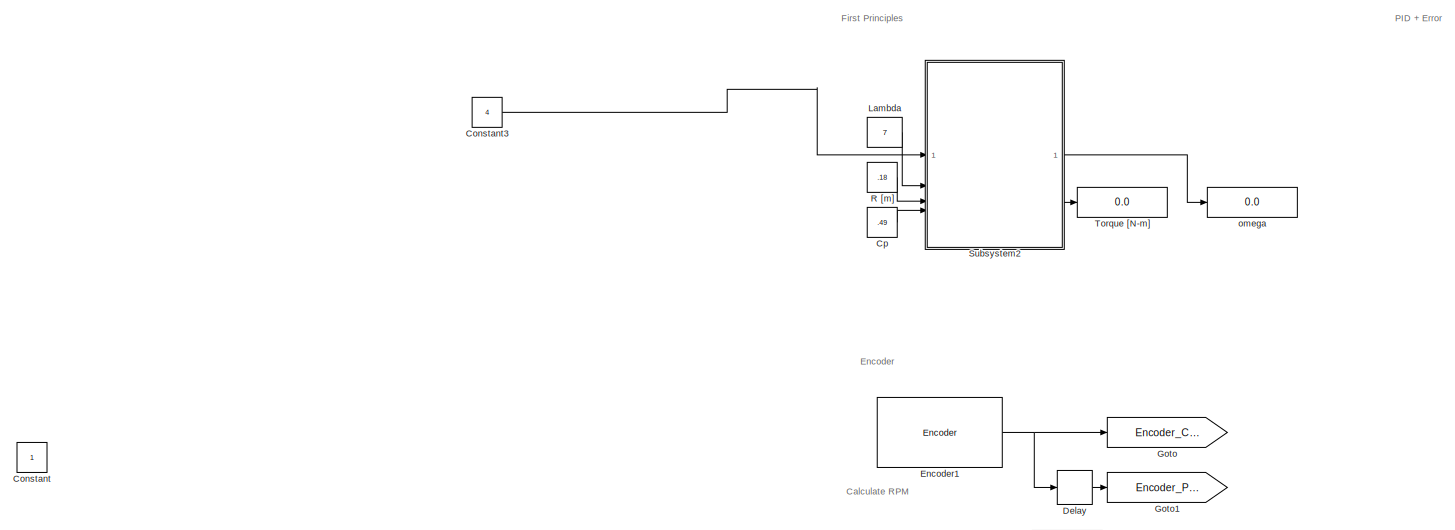
[diagram: root canvas - part 1/3, top left region]
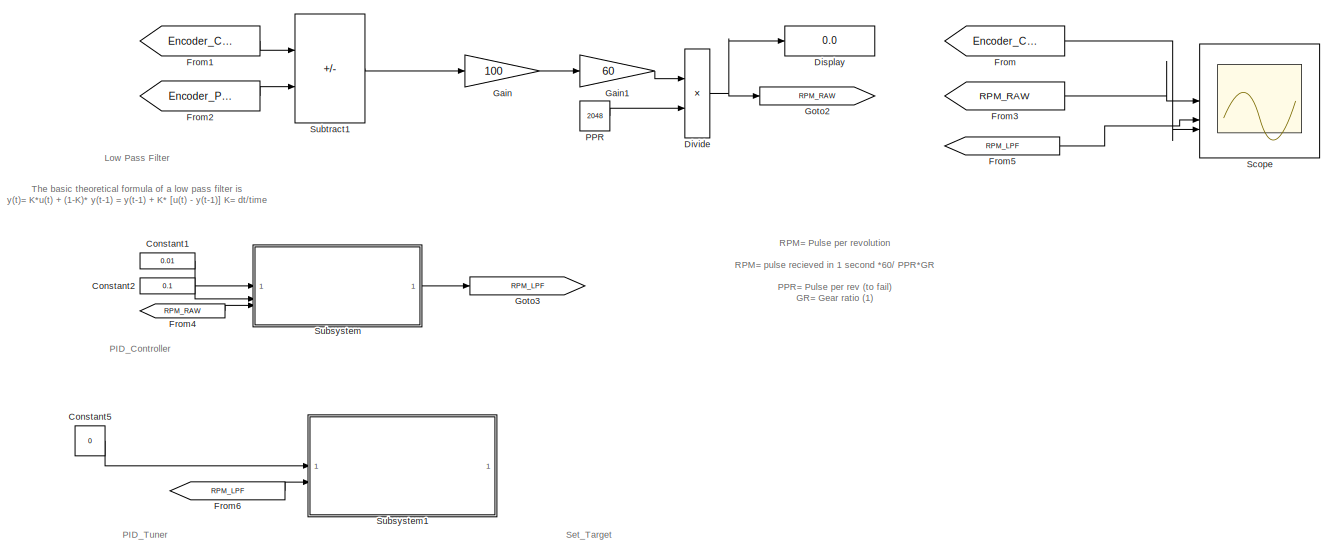
[diagram: root canvas - part 2/3, central region]
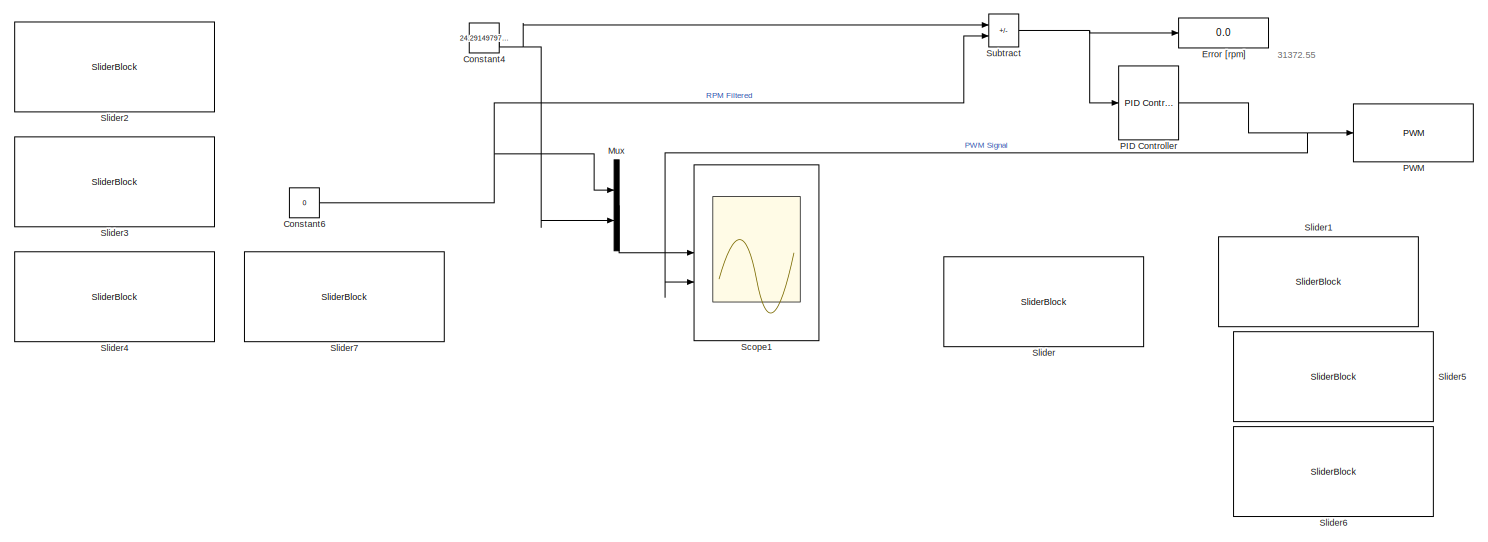
[diagram: root canvas - part 3/3, bottom right region]
MODEL slx_6d13e44df629
KIND model
CONFIG AbsTol = auto
CONFIG EnableMultiTasking = on
CONFIG FixedStep = .00011
CONFIG MaxStep = auto
CONFIG MinStep = auto
CONFIG RelTol = 1e-3
CONFIG SampleTimeConstraint = Unconstrained
CONFIG SolverName = FixedStepDiscrete
CONFIG StartTime = 0.0
CONFIG StopTime = inf
WORKSPACE source: mxarray member
WORKSPACE lambda = 10
WORKSPACE rho = 1.125
BLOCK [Constant] Constant
  IOType = siggen
BLOCK [Constant] Constant1
  Value = 0.01
BLOCK [Constant] Constant2
  Value = 0.1
BLOCK [Constant] Constant3
  Commented = on
  Value = 4
BLOCK [Constant] Constant4
  Value = 24.2914979757085
BLOCK [Constant] Constant5
  Commented = on
  Value = 0
BLOCK [Constant] Constant6
  Value = 0
BLOCK [Constant] Cp
  Commented = on
  Value = .49
BLOCK [Delay] Delay
  DelayLength = 1
  InputPortMap = u0
BLOCK [Display] Display
  Decimation = 1
BLOCK [Product] Divide
  Inputs = */
BLOCK [Reference] Encoder1  REF=arduinosensorlib/Encoder
  SourceBlock = arduinosensorlib/Encoder
  SourceType = Arduino Rotary Encoder
BLOCK [Display] Error [rpm]
  Decimation = 1
BLOCK [From] From
  GotoTag = Encoder_Current
BLOCK [From] From1
  GotoTag = Encoder_Current
BLOCK [From] From2
  GotoTag = Encoder_Previous
BLOCK [From] From3
  GotoTag = RPM_RAW
BLOCK [From] From4
  GotoTag = RPM_RAW
BLOCK [From] From5
  GotoTag = RPM_LPF
BLOCK [From] From6
  Commented = on
  GotoTag = RPM_LPF
BLOCK [Gain] Gain
  Gain = 100
BLOCK [Gain] Gain1
  Gain = 60
BLOCK [Goto] Goto
  GotoTag = Encoder_Current
BLOCK [Goto] Goto1
  GotoTag = Encoder_Previous
BLOCK [Goto] Goto2
  GotoTag = RPM_RAW
BLOCK [Goto] Goto3
  GotoTag = RPM_LPF
BLOCK [Constant] Lambda
  Commented = on
  Value = 7
BLOCK [Mux] Mux
  DisplayOption = bar
  Inputs = 2
BLOCK [Reference] PID Controller  REF=slpidlib/PID Controller
  LibrarySourceBlock = simulink/Continuous/PID Controller
  SourceBlock = slpidlib/PID Controller
  SourceType = PID 1dof
BLOCK [Constant] PPR
  Value = 2048
BLOCK [Reference] PWM  REF=arduinolib/PWM
  SourceBlock = arduinolib/PWM
  SourceType = Arduino PWM
BLOCK [Constant] R [m]
  Commented = on
  Value = .18
BLOCK [Scope] Scope
  ActiveDisplayYMaximum = 303387.53308712941
  ActiveDisplayYMinimum = -111615.35287433089
  DataLoggingVariableName = ScopeData1
  Floating = off
  GraphicalSettings = {"Style":{"BackgroundColor":[0.12941176470588237,0.12941176470588237,0.12941176470588237],"AxesColor":[0.07058823529411765,0.07058823529411765,0.07058823529411765],"LabelsColor":[0.8509803921568627,0.8509803921568627,0.8509803921568627],"PreserveColors":false,"Visible":[true,true,true],"LineStyle":["-","-","-"],"LineWidth":[1.5,1.5,1.5],"BarWidth":[0.9,0.9,0.9],"LineColor":["auto","auto","auto"],"...<+2540ch>
  LayoutDimensionsString = [1,2]
  MultipleDisplayCache = [{"MaxYLimMag":240748.4560546875,"MaxYLimReal":303387.53308712941,"MinYLimMag":0,"MinYLimReal":-111615.35287433089,"PlotAsMagnitudePhase":false,"ShowGrid":true,"ShowLegend":true,"Title":"%<SignalLabel>","YLabel":""},{"MaxYLimMag":240748.4560546875,"MaxYLimReal":303387.53308712941,"MinYLimMag":0,"MinYLimReal":-111615.35287433089,"PlotAsMagnitudePhase":false,"ShowGrid":true,"ShowLegend":true,"Title"...<+31ch>
  NumInputPorts = 3
  ScopeFrameLocation = window
  ShowLegend = on
  WasSavedAsWebScope = on
  WindowPosition = [641.000000,40.000000,1278.000000,1360.000000,]
BLOCK [Scope] Scope1
  ActiveDisplayString = 2
  ActiveDisplayYMaximum = 288.71002139995966
  ActiveDisplayYMinimum = -159.80323832172013
  Floating = off
  GraphicalSettings = {"AxesScalingProperties":{"AlignXAxis":"Center","AlignYAxis":"Center","AutoScaleXAxisLimits":false,"AxesScaling":"Manual","AxesScalingNumUpdates":10,"ExpandOnly":true,"ScaleAxesLimitsAtStop":false,"XAxisDataRange":100,"YAxisDataRange":80},"DisplayProperties":{"ColorOrder":["auto","auto","auto","auto","auto","auto","auto","auto","auto","auto","auto","auto","auto","auto","auto","auto","auto","auto",...<+2548ch>
  LayoutDimensionsString = [2,1]
  MultipleDisplayCache = [{"MaxYLimMag":533.12025445699692,"MaxYLimReal":753.05621796649029,"MinYLimMag":0,"MinYLimReal":-234.85934648326409,"PlotAsMagnitudePhase":false,"ShowGrid":true,"ShowLegend":true,"Title":"%<SignalLabel>","YLabel":""},{"MaxYLimMag":286.875,"MaxYLimReal":288.71002139995966,"MinYLimMag":0,"MinYLimReal":-159.80323832172013,"PlotAsMagnitudePhase":false,"ShowGrid":true,"ShowLegend":true,"Title":"%<Signa...<+22ch>
  NumInputPorts = 2
  ScopeFrameLocation = window
  ShowLegend = on
  WasSavedAsWebScope = on
  WindowPosition = [1282.000000,50.000000,1278.000000,1360.000000,]
BLOCK [SliderBlock] Slider
  ScaleMax = 1500
BLOCK [SliderBlock] Slider1
  ScaleMax = 0.2
BLOCK [SliderBlock] Slider2
  Commented = on
  ScaleMax = 0.05
BLOCK [SliderBlock] Slider3
  Commented = on
  ScaleMax = 5
BLOCK [SliderBlock] Slider4
  Commented = on
  ScaleMax = 0.05
BLOCK [SliderBlock] Slider5
  ScaleMax = 10
BLOCK [SliderBlock] Slider6
  ScaleMax = 10
BLOCK [SliderBlock] Slider7
  ScaleMax = 2000
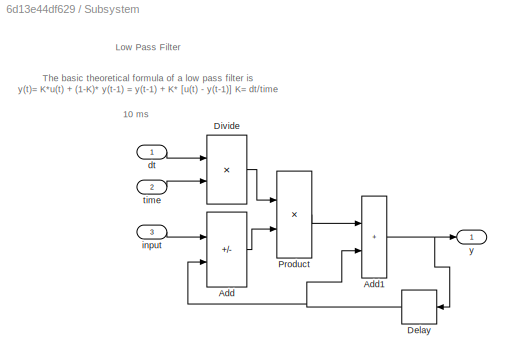
BLOCK [SubSystem] Subsystem
BLOCK [Sum] Subsystem/Add
  IconShape = rectangular
  Inputs = +-
BLOCK [Sum] Subsystem/Add1
  IconShape = rectangular
BLOCK [Delay] Subsystem/Delay
  DelayLength = 1
  InputPortMap = u0
  NameLocation = top
BLOCK [Product] Subsystem/Divide
  Inputs = */
BLOCK [Product] Subsystem/Product
BLOCK [Inport] Subsystem/dt
BLOCK [Inport] Subsystem/input
  Port = 3
BLOCK [Inport] Subsystem/time
  Port = 2
BLOCK [Outport] Subsystem/y
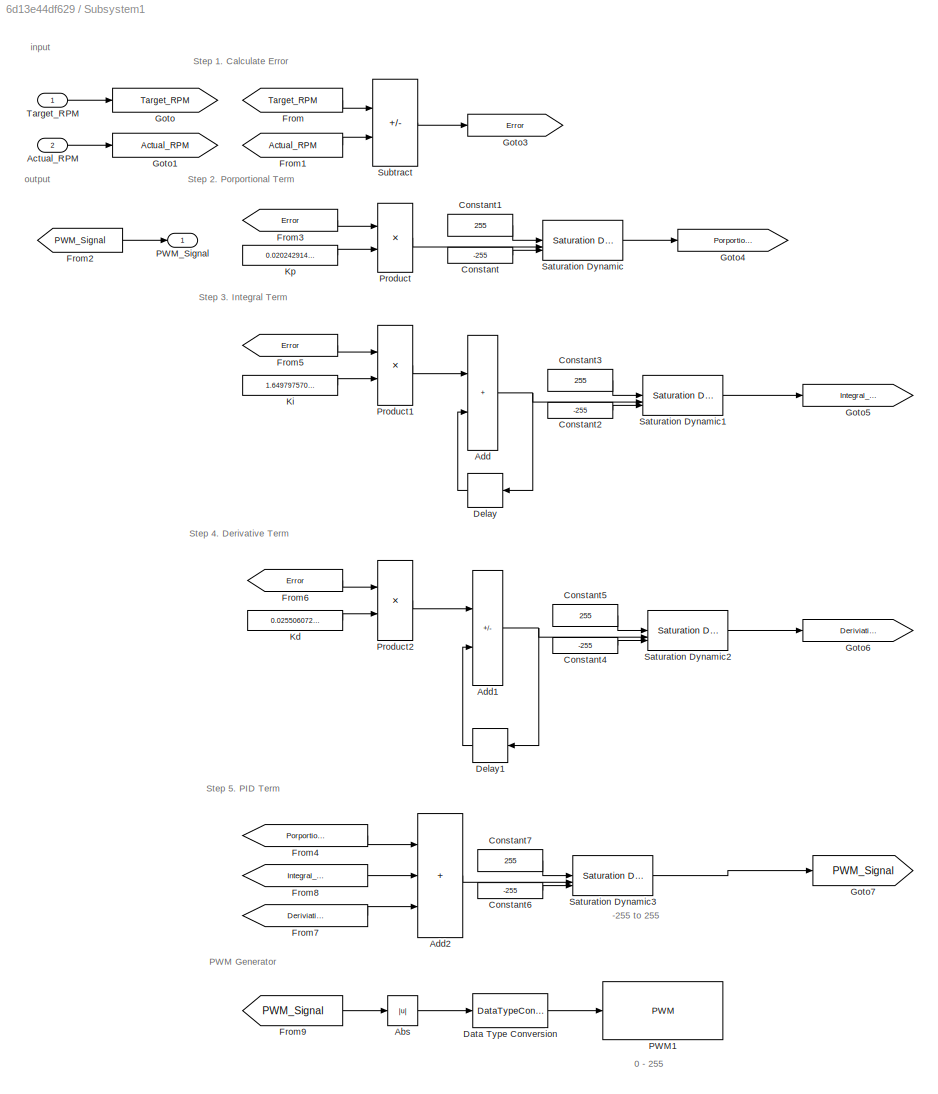
BLOCK [SubSystem] Subsystem1
  Commented = on
BLOCK [Abs] Subsystem1/Abs
  SaturateOnIntegerOverflow = off
BLOCK [Inport] Subsystem1/Actual_RPM
  Port = 2
BLOCK [Sum] Subsystem1/Add
  IconShape = rectangular
BLOCK [Sum] Subsystem1/Add1
  IconShape = rectangular
  Inputs = +-
BLOCK [Sum] Subsystem1/Add2
  IconShape = rectangular
  Inputs = +++
BLOCK [Constant] Subsystem1/Constant
  Value = -255
BLOCK [Constant] Subsystem1/Constant1
  Value = 255
BLOCK [Constant] Subsystem1/Constant2
  Value = -255
BLOCK [Constant] Subsystem1/Constant3
  Value = 255
BLOCK [Constant] Subsystem1/Constant4
  Value = -255
BLOCK [Constant] Subsystem1/Constant5
  Value = 255
BLOCK [Constant] Subsystem1/Constant6
  Value = -255
BLOCK [Constant] Subsystem1/Constant7
  Value = 255
BLOCK [DataTypeConversion] Subsystem1/Data Type Conversion
  OutDataTypeStr = uint8
  OutMax = 255
  OutMin = 0
  RndMeth = Floor
  SaturateOnIntegerOverflow = off
BLOCK [Delay] Subsystem1/Delay
  DelayLength = 1
  InputPortMap = u0
  NameLocation = top
BLOCK [Delay] Subsystem1/Delay1
  DelayLength = 1
  InputPortMap = u0
  NameLocation = top
BLOCK [From] Subsystem1/From
  GotoTag = Target_RPM
BLOCK [From] Subsystem1/From1
  GotoTag = Actual_RPM
BLOCK [From] Subsystem1/From2
  GotoTag = PWM_Signal
BLOCK [From] Subsystem1/From3
  GotoTag = Error
BLOCK [From] Subsystem1/From4
  GotoTag = Porportional_Term
BLOCK [From] Subsystem1/From5
  GotoTag = Error
BLOCK [From] Subsystem1/From6
  GotoTag = Error
BLOCK [From] Subsystem1/From7
  GotoTag = Deriviative_Term
BLOCK [From] Subsystem1/From8
  GotoTag = Integral_Term
BLOCK [From] Subsystem1/From9
  GotoTag = PWM_Signal
BLOCK [Goto] Subsystem1/Goto
  GotoTag = Target_RPM
BLOCK [Goto] Subsystem1/Goto1
  GotoTag = Actual_RPM
BLOCK [Goto] Subsystem1/Goto3
  GotoTag = Error
BLOCK [Goto] Subsystem1/Goto4
  GotoTag = Porportional_Term
BLOCK [Goto] Subsystem1/Goto5
  GotoTag = Integral_Term
BLOCK [Goto] Subsystem1/Goto6
  GotoTag = Deriviative_Term
BLOCK [Goto] Subsystem1/Goto7
  GotoTag = PWM_Signal
BLOCK [Constant] Subsystem1/Kd
  Value = 0.02550607287449393
BLOCK [Constant] Subsystem1/Ki
  Value = 1.649797570850202
BLOCK [Constant] Subsystem1/Kp
  Value = 0.02024291497975709
BLOCK [Reference] Subsystem1/PWM1  REF=arduinolib/PWM
  SourceBlock = arduinolib/PWM
  SourceType = Arduino PWM
BLOCK [Outport] Subsystem1/PWM_Signal
BLOCK [Product] Subsystem1/Product
BLOCK [Product] Subsystem1/Product1
BLOCK [Product] Subsystem1/Product2
BLOCK [Reference] Subsystem1/Saturation Dynamic  REF=simulink/Discontinuities/Saturation
Dynamic
  SourceBlock = simulink/Discontinuities/Saturation\nDynamic
  SourceType = Saturation Dynamic
BLOCK [Reference] Subsystem1/Saturation Dynamic1  REF=simulink/Discontinuities/Saturation
Dynamic
  SourceBlock = simulink/Discontinuities/Saturation\nDynamic
  SourceType = Saturation Dynamic
BLOCK [Reference] Subsystem1/Saturation Dynamic2  REF=simulink/Discontinuities/Saturation
Dynamic
  SourceBlock = simulink/Discontinuities/Saturation\nDynamic
  SourceType = Saturation Dynamic
BLOCK [Reference] Subsystem1/Saturation Dynamic3  REF=simulink/Discontinuities/Saturation
Dynamic
  SourceBlock = simulink/Discontinuities/Saturation\nDynamic
  SourceType = Saturation Dynamic
BLOCK [Sum] Subsystem1/Subtract
  IconShape = rectangular
  Inputs = +-
BLOCK [Inport] Subsystem1/Target_RPM
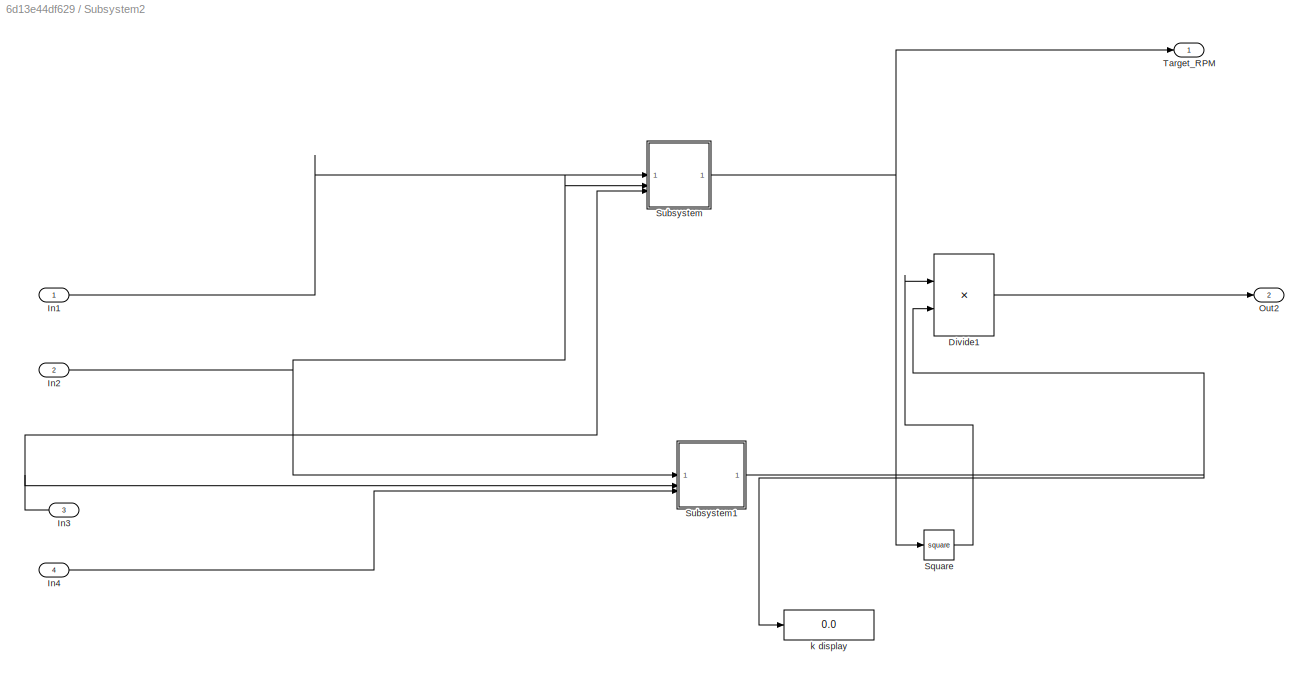
BLOCK [SubSystem] Subsystem2
  Commented = on
BLOCK [Product] Subsystem2/Divide1
  Inputs = **
BLOCK [Inport] Subsystem2/In1
BLOCK [Inport] Subsystem2/In2
  Port = 2
BLOCK [Inport] Subsystem2/In3
  Port = 3
BLOCK [Inport] Subsystem2/In4
  Port = 4
BLOCK [Outport] Subsystem2/Out2
  Port = 2
BLOCK [Math] Subsystem2/Square
  Operator = square
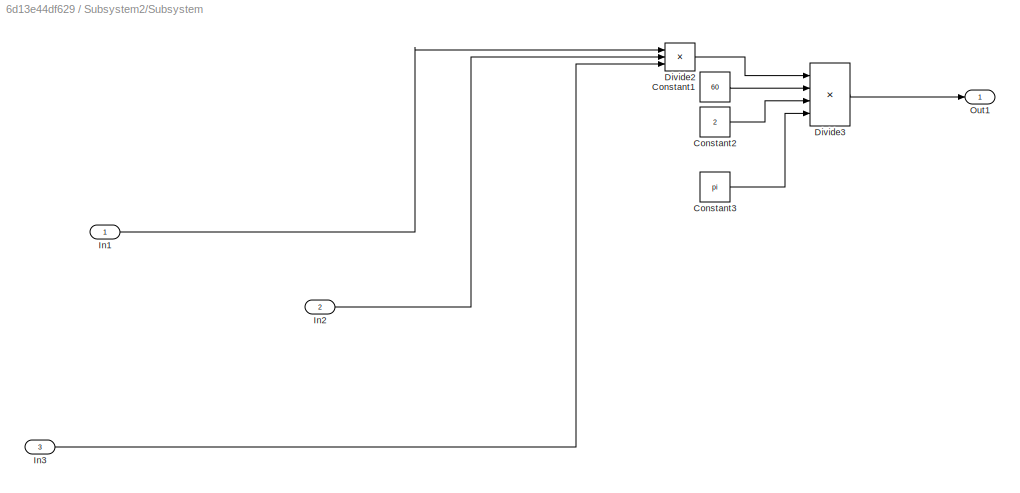
BLOCK [SubSystem] Subsystem2/Subsystem
BLOCK [Constant] Subsystem2/Subsystem/Constant1
  Value = 60
BLOCK [Constant] Subsystem2/Subsystem/Constant2
  Value = 2
BLOCK [Constant] Subsystem2/Subsystem/Constant3
  Value = pi
BLOCK [Product] Subsystem2/Subsystem/Divide2
  Inputs = **/
BLOCK [Product] Subsystem2/Subsystem/Divide3
  Inputs = **//
BLOCK [Inport] Subsystem2/Subsystem/In1
BLOCK [Inport] Subsystem2/Subsystem/In2
  Port = 2
BLOCK [Inport] Subsystem2/Subsystem/In3
  Port = 3
BLOCK [Outport] Subsystem2/Subsystem/Out1
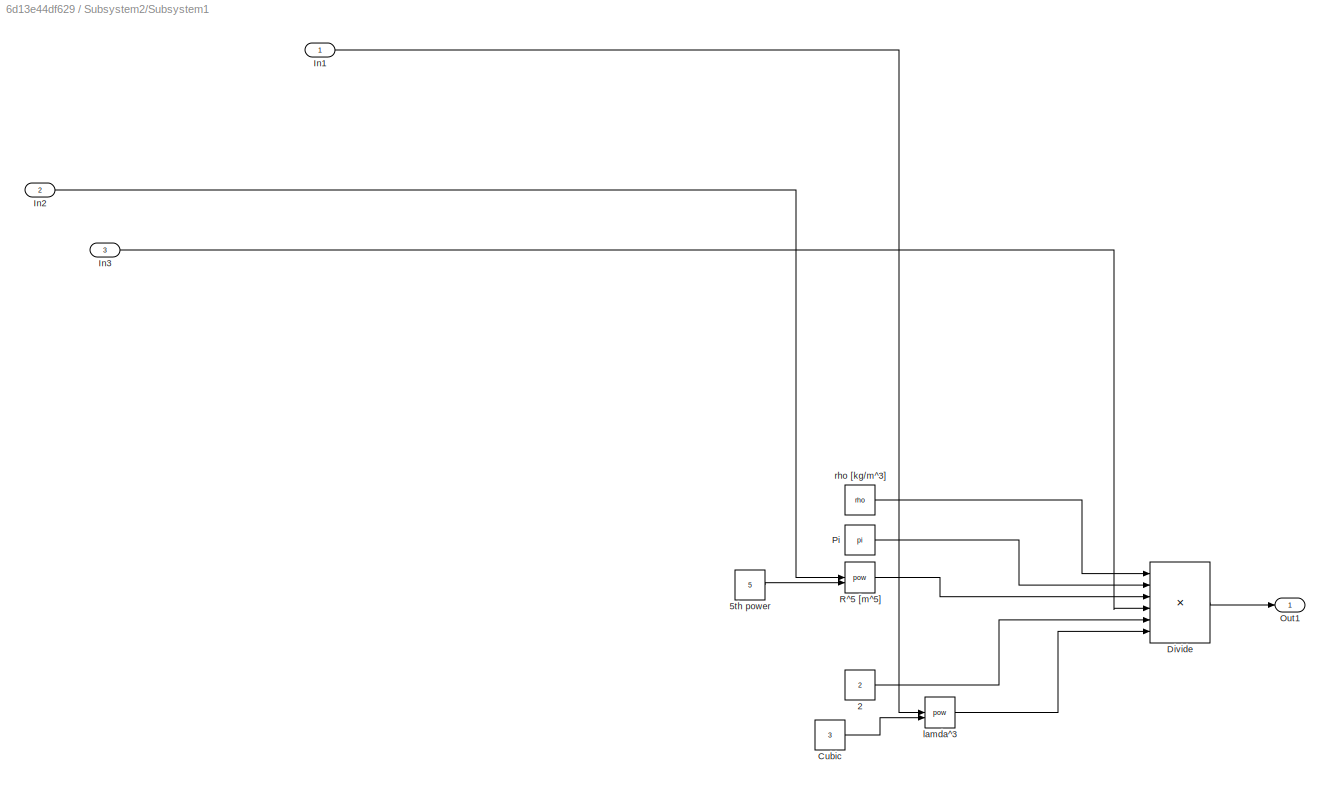
BLOCK [SubSystem] Subsystem2/Subsystem1
BLOCK [Constant] Subsystem2/Subsystem1/2
  Value = 2
BLOCK [Constant] Subsystem2/Subsystem1/5th power
  Value = 5
BLOCK [Constant] Subsystem2/Subsystem1/Cubic
  Value = 3
BLOCK [Product] Subsystem2/Subsystem1/Divide
  Inputs = ****//
BLOCK [Inport] Subsystem2/Subsystem1/In1
BLOCK [Inport] Subsystem2/Subsystem1/In2
  Port = 2
BLOCK [Inport] Subsystem2/Subsystem1/In3
  Port = 3
BLOCK [Outport] Subsystem2/Subsystem1/Out1
BLOCK [Constant] Subsystem2/Subsystem1/Pi
  OutDataTypeStr = Inherit: Inherit via back propagation
  Value = pi
BLOCK [Math] Subsystem2/Subsystem1/R^5 [m^5]
  Operator = pow
BLOCK [Math] Subsystem2/Subsystem1/lamda^3
  Operator = pow
BLOCK [Constant] Subsystem2/Subsystem1/rho [kg//m^3]
  Value = rho
BLOCK [Outport] Subsystem2/Target_RPM
BLOCK [Display] Subsystem2/k display
  Decimation = 1
BLOCK [Sum] Subtract
  IconShape = rectangular
  Inputs = +-
BLOCK [Sum] Subtract1
  IconShape = rectangular
  Inputs = +-
BLOCK [Display] Torque [N-m]
  Commented = on
  Decimation = 1
BLOCK [Display] omega
  Commented = on
  Decimation = 1
ANNOTATION (root): 31372.55
ANNOTATION (root): The basic theoretical formula of a low pass filter is y(t)= K*u(t) + (1-K)* y(t-1) = y(t-1) + K* [u(t) - y(t-1)] K= dt/time
ANNOTATION (root): Calculate RPM
ANNOTATION (root): Encoder
ANNOTATION (root): First Principles
ANNOTATION (root): Low Pass Filter
ANNOTATION (root): PID + Error
ANNOTATION (root): PID_Controller
ANNOTATION (root): PID_Tuner
ANNOTATION (root): Set_Target
ANNOTATION (root): RPM= Pulse per revolution RPM= pulse recieved in 1 second *60/ PPR*GR PPR= Pulse per rev (to fail) GR= Gear ratio (1)
ANNOTATION Subsystem: 10 ms
ANNOTATION Subsystem: The basic theoretical formula of a low pass filter is y(t)= K*u(t) + (1-K)* y(t-1) = y(t-1) + K* [u(t) - y(t-1)] K= dt/time
ANNOTATION Subsystem: Low Pass Filter
ANNOTATION Subsystem1: -255 to 255
ANNOTATION Subsystem1: 0 - 255
ANNOTATION Subsystem1: PWM Generator
ANNOTATION Subsystem1: Step 1. Calculate Error
ANNOTATION Subsystem1: Step 2. Porportional Term
ANNOTATION Subsystem1: Step 3. Integral Term
ANNOTATION Subsystem1: Step 4. Derivative Term
ANNOTATION Subsystem1: Step 5. PID Term
ANNOTATION Subsystem1: input
ANNOTATION Subsystem1: output
LINE Constant1:1 -> Subsystem:1
LINE Constant2:1 -> Subsystem:2
LINE Constant3:1 -> Subsystem2:1
NET Constant4:1 -> Mux:2, Subtract:1
LINE Constant5:1 -> Subsystem1:1
NET Constant6:1 -> Mux:1, Subtract:2
LINE Cp:1 -> Subsystem2:4
LINE Delay:1 -> Goto1:1
NET Divide:1 -> Display:1, Goto2:1
NET Encoder1:1 -> Delay:1, Goto:1
LINE From1:1 -> Subtract1:1
LINE From2:1 -> Subtract1:2
LINE From3:1 -> Scope:1
LINE From4:1 -> Subsystem:3
LINE From5:1 -> Scope:2
LINE From6:1 -> Subsystem1:2
LINE From:1 -> Scope:3
LINE Gain1:1 -> Divide:1
LINE Gain:1 -> Gain1:1
LINE Lambda:1 -> Subsystem2:2
LINE Mux:1 -> Scope1:1
NET PID Controller:1 -> PWM:1, Scope1:2
LINE PPR:1 -> Divide:2
LINE R [m]:1 -> Subsystem2:3
NET Subsystem/Add1:1 -> Subsystem/Delay:1, Subsystem/y:1
LINE Subsystem/Add:1 -> Subsystem/Product:2
NET Subsystem/Delay:1 -> Subsystem/Add1:2, Subsystem/Add:2
LINE Subsystem/Divide:1 -> Subsystem/Product:1
LINE Subsystem/Product:1 -> Subsystem/Add1:1
LINE Subsystem/dt:1 -> Subsystem/Divide:1
LINE Subsystem/input:1 -> Subsystem/Add:1
LINE Subsystem/time:1 -> Subsystem/Divide:2
LINE Subsystem1/Abs:1 -> Subsystem1/Data Type Conversion:1
LINE Subsystem1/Actual_RPM:1 -> Subsystem1/Goto1:1
NET Subsystem1/Add1:1 -> Subsystem1/Delay1:1, Subsystem1/Saturation Dynamic2:2
LINE Subsystem1/Add2:1 -> Subsystem1/Saturation Dynamic3:2
NET Subsystem1/Add:1 -> Subsystem1/Delay:1, Subsystem1/Saturation Dynamic1:2
LINE Subsystem1/Constant1:1 -> Subsystem1/Saturation Dynamic:1
LINE Subsystem1/Constant2:1 -> Subsystem1/Saturation Dynamic1:3
LINE Subsystem1/Constant3:1 -> Subsystem1/Saturation Dynamic1:1
LINE Subsystem1/Constant4:1 -> Subsystem1/Saturation Dynamic2:3
LINE Subsystem1/Constant5:1 -> Subsystem1/Saturation Dynamic2:1
LINE Subsystem1/Constant6:1 -> Subsystem1/Saturation Dynamic3:3
LINE Subsystem1/Constant7:1 -> Subsystem1/Saturation Dynamic3:1
LINE Subsystem1/Constant:1 -> Subsystem1/Saturation Dynamic:3
LINE Subsystem1/Data Type Conversion:1 -> Subsystem1/PWM1:1
LINE Subsystem1/Delay1:1 -> Subsystem1/Add1:2
LINE Subsystem1/Delay:1 -> Subsystem1/Add:2
LINE Subsystem1/From1:1 -> Subsystem1/Subtract:2
LINE Subsystem1/From2:1 -> Subsystem1/PWM_Signal:1
LINE Subsystem1/From3:1 -> Subsystem1/Product:1
LINE Subsystem1/From4:1 -> Subsystem1/Add2:1
LINE Subsystem1/From5:1 -> Subsystem1/Product1:1
LINE Subsystem1/From6:1 -> Subsystem1/Product2:1
LINE Subsystem1/From7:1 -> Subsystem1/Add2:3
LINE Subsystem1/From8:1 -> Subsystem1/Add2:2
LINE Subsystem1/From9:1 -> Subsystem1/Abs:1
LINE Subsystem1/From:1 -> Subsystem1/Subtract:1
LINE Subsystem1/Kd:1 -> Subsystem1/Product2:2
LINE Subsystem1/Ki:1 -> Subsystem1/Product1:2
LINE Subsystem1/Kp:1 -> Subsystem1/Product:2
LINE Subsystem1/Product1:1 -> Subsystem1/Add:1
LINE Subsystem1/Product2:1 -> Subsystem1/Add1:1
LINE Subsystem1/Product:1 -> Subsystem1/Saturation Dynamic:2
LINE Subsystem1/Saturation Dynamic1:1 -> Subsystem1/Goto5:1
LINE Subsystem1/Saturation Dynamic2:1 -> Subsystem1/Goto6:1
LINE Subsystem1/Saturation Dynamic3:1 -> Subsystem1/Goto7:1
LINE Subsystem1/Saturation Dynamic:1 -> Subsystem1/Goto4:1
LINE Subsystem1/Subtract:1 -> Subsystem1/Goto3:1
LINE Subsystem1/Target_RPM:1 -> Subsystem1/Goto:1
LINE Subsystem2/Divide1:1 -> Subsystem2/Out2:1
LINE Subsystem2/In1:1 -> Subsystem2/Subsystem:1
NET Subsystem2/In2:1 -> Subsystem2/Subsystem1:1, Subsystem2/Subsystem:2
NET Subsystem2/In3:1 -> Subsystem2/Subsystem1:2, Subsystem2/Subsystem:3
LINE Subsystem2/In4:1 -> Subsystem2/Subsystem1:3
LINE Subsystem2/Square:1 -> Subsystem2/Divide1:1
LINE Subsystem2/Subsystem/Constant1:1 -> Subsystem2/Subsystem/Divide3:2
LINE Subsystem2/Subsystem/Constant2:1 -> Subsystem2/Subsystem/Divide3:3
LINE Subsystem2/Subsystem/Constant3:1 -> Subsystem2/Subsystem/Divide3:4
LINE Subsystem2/Subsystem/Divide2:1 -> Subsystem2/Subsystem/Divide3:1
LINE Subsystem2/Subsystem/Divide3:1 -> Subsystem2/Subsystem/Out1:1
LINE Subsystem2/Subsystem/In1:1 -> Subsystem2/Subsystem/Divide2:1
LINE Subsystem2/Subsystem/In2:1 -> Subsystem2/Subsystem/Divide2:2
LINE Subsystem2/Subsystem/In3:1 -> Subsystem2/Subsystem/Divide2:3
LINE Subsystem2/Subsystem1/2:1 -> Subsystem2/Subsystem1/Divide:5
LINE Subsystem2/Subsystem1/5th power:1 -> Subsystem2/Subsystem1/R^5 [m^5]:2
LINE Subsystem2/Subsystem1/Cubic:1 -> Subsystem2/Subsystem1/lamda^3:2
LINE Subsystem2/Subsystem1/Divide:1 -> Subsystem2/Subsystem1/Out1:1
LINE Subsystem2/Subsystem1/In1:1 -> Subsystem2/Subsystem1/lamda^3:1
LINE Subsystem2/Subsystem1/In2:1 -> Subsystem2/Subsystem1/R^5 [m^5]:1
LINE Subsystem2/Subsystem1/In3:1 -> Subsystem2/Subsystem1/Divide:4
LINE Subsystem2/Subsystem1/Pi:1 -> Subsystem2/Subsystem1/Divide:2
LINE Subsystem2/Subsystem1/R^5 [m^5]:1 -> Subsystem2/Subsystem1/Divide:3
LINE Subsystem2/Subsystem1/lamda^3:1 -> Subsystem2/Subsystem1/Divide:6
LINE Subsystem2/Subsystem1/rho [kg//m^3]:1 -> Subsystem2/Subsystem1/Divide:1
NET Subsystem2/Subsystem1:1 -> Subsystem2/Divide1:2, Subsystem2/k display:1
NET Subsystem2/Subsystem:1 -> Subsystem2/Square:1, Subsystem2/Target_RPM:1
LINE Subsystem2:1 -> omega:1
LINE Subsystem2:2 -> Torque [N-m]:1
LINE Subsystem:1 -> Goto3:1
LINE Subtract1:1 -> Gain:1
NET Subtract:1 -> Error [rpm]:1, PID Controller:1
note: NET lines group one-source signal fan-out (src -> all destinations, sorted); 1:1 wires keep LINE
